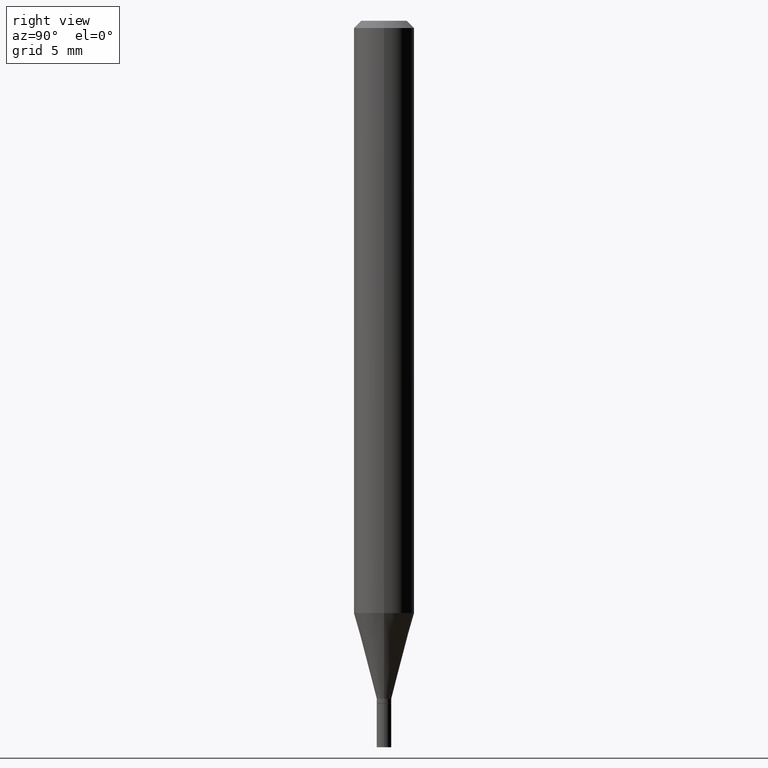
[diagram: clean part render]
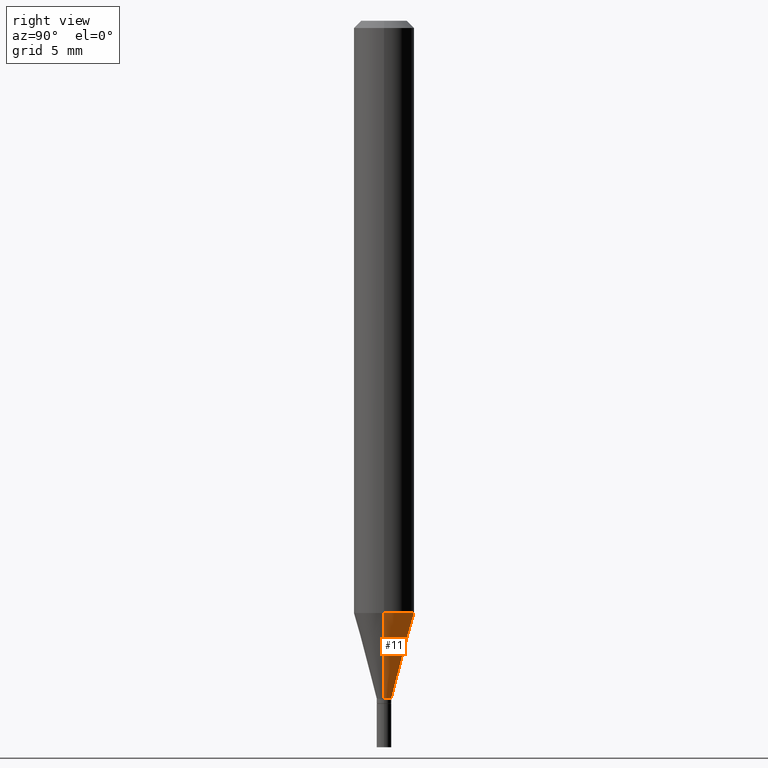
[diagram: same view with one face highlighted and labeled with its STEP entity id]
A machine part, right view. The second image highlights one B-rep face of the part: STEP entity #11.
In plain terms, the highlighted conical surface has half-angle 15 deg.
Its self-contained STEP definition (entity closure, byte-faithful):
#4 = CARTESIAN_POINT ( 'NONE',  ( -0.06250000000000000000, -3.825041341393883381E-15, -1.222727586640478536 ) ) ;
#11 = ADVANCED_FACE ( 'NONE', ( #85 ), #321, .T. ) ;
#18 = EDGE_CURVE ( 'NONE', #19, #363, #37, .T. ) ;
#19 = VERTEX_POINT ( 'NONE', #441 ) ;
#37 = CIRCLE ( 'NONE', #350, 0.06250000000000000000 ) ;
#44 = VERTEX_POINT ( 'NONE', #203 ) ;
#75 = CIRCLE ( 'NONE', #335, 0.01499999999999992138 ) ;
#85 = FACE_OUTER_BOUND ( 'NONE', #244, .T. ) ;
#102 = VERTEX_POINT ( 'NONE', #274 ) ;
#104 = ORIENTED_EDGE ( 'NONE', *, *, #438, .T. ) ;
#113 = LINE ( 'NONE', #151, #269 ) ;
#120 = DIRECTION ( 'NONE',  ( -2.445468806185136597E-29, 3.491481338843145583E-15, 1.000000000000000000 ) ) ;
#124 = DIRECTION ( 'NONE',  ( -2.445468806185136597E-29, 3.491481338843145583E-15, 1.000000000000000000 ) ) ;
#129 = EDGE_CURVE ( 'NONE', #102, #44, #75, .T. ) ;
#151 = CARTESIAN_POINT ( 'NONE',  ( -0.01499999999999992138, -4.781492464016388930E-15, -1.400000000000000133 ) ) ;
#158 = CARTESIAN_POINT ( 'NONE',  ( 2.990142171591324590E-29, -4.269130551243945997E-15, -1.222727586640478536 ) ) ;
#159 = LINE ( 'NONE', #307, #417 ) ;
#168 = DIRECTION ( 'NONE',  ( 1.000000000000000000, -6.982962677686239889E-15, 0.000000000000000000 ) ) ;
#198 = DIRECTION ( 'NONE',  ( -0.2588190451025213501, 5.211531920934551042E-15, 0.9659258262890682012 ) ) ;
#203 = CARTESIAN_POINT ( 'NONE',  ( -0.01499999999999992138, -4.303266902705136550E-15, -1.400000000000000133 ) ) ;
#233 = CARTESIAN_POINT ( 'NONE',  ( 3.423656328659191123E-29, -4.888073874380404052E-15, -1.400000000000000133 ) ) ;
#244 = EDGE_LOOP ( 'NONE', ( #354, #104, #264, #246 ) ) ;
#246 = ORIENTED_EDGE ( 'NONE', *, *, #364, .F. ) ;
#263 = DIRECTION ( 'NONE',  ( 1.000000000000000000, -6.982962677686270655E-15, 0.000000000000000000 ) ) ;
#264 = ORIENTED_EDGE ( 'NONE', *, *, #18, .F. ) ;
#269 = VECTOR ( 'NONE', #198, 39.37007874015747433 ) ;
#274 = CARTESIAN_POINT ( 'NONE',  ( 0.01499999999999992138, -4.992818314545696633E-15, -1.400000000000000133 ) ) ;
#297 = DIRECTION ( 'NONE',  ( 1.000000000000000000, -6.982962677686239889E-15, 0.000000000000000000 ) ) ;
#307 = CARTESIAN_POINT ( 'NONE',  ( 0.01499999999999992138, -4.992818314545696633E-15, -1.400000000000000133 ) ) ;
#310 = DIRECTION ( 'NONE',  ( 0.2588190451025213501, 1.565188264969621968E-15, 0.9659258262890682012 ) ) ;
#321 = CONICAL_SURFACE ( 'NONE', #466, 0.01499999999999992138, 0.2617993877991500740 ) ;
#330 = CARTESIAN_POINT ( 'NONE',  ( 3.423656328659191123E-29, -4.888073874380404052E-15, -1.400000000000000133 ) ) ;
#335 = AXIS2_PLACEMENT_3D ( 'NONE', #233, #454, #168 ) ;
#350 = AXIS2_PLACEMENT_3D ( 'NONE', #158, #124, #263 ) ;
#354 = ORIENTED_EDGE ( 'NONE', *, *, #129, .T. ) ;
#363 = VERTEX_POINT ( 'NONE', #4 ) ;
#364 = EDGE_CURVE ( 'NONE', #102, #19, #159, .T. ) ;
#417 = VECTOR ( 'NONE', #310, 39.37007874015747433 ) ;
#438 = EDGE_CURVE ( 'NONE', #44, #363, #113, .T. ) ;
#441 = CARTESIAN_POINT ( 'NONE',  ( 0.06250000000000000000, -4.705565718599336877E-15, -1.222727586640478536 ) ) ;
#454 = DIRECTION ( 'NONE',  ( -2.445468806185136597E-29, 3.491481338843145583E-15, 1.000000000000000000 ) ) ;
#466 = AXIS2_PLACEMENT_3D ( 'NONE', #330, #120, #297 ) ;